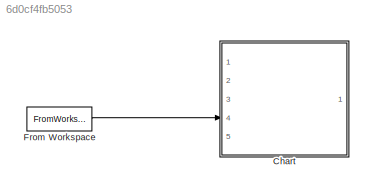
MODEL slx_6d0cf4fb5053
KIND model
CONFIG AbsTol = auto
CONFIG EnableMultiTasking = off
CONFIG FixedStep = auto
CONFIG MaxStep = auto
CONFIG MinStep = auto
CONFIG RelTol = 1e-3
CONFIG SampleTimeConstraint = Unconstrained
CONFIG Solver = VariableStepAuto
CONFIG SolverName = VariableStepAuto
CONFIG StartTime = 0.0
CONFIG StopTime = 10.0
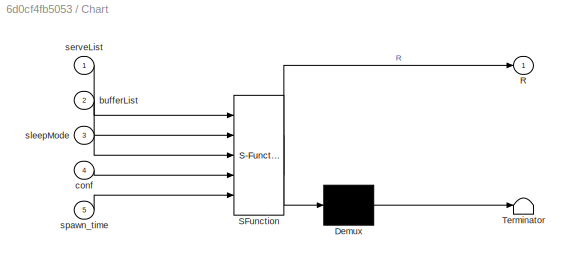
BLOCK [SubSystem] Chart
  ErrorFcn = Stateflow.Translate.translate
  PermitHierarchicalResolution = ExplicitOnly
  Ports = [5, 1]
  RequestExecContextInheritance = off
  SFBlockType = Chart
  TreatAsAtomicUnit = on
BLOCK [Demux] Chart/ Demux 
  Outputs = 1
  Ports = [1, 1]
BLOCK [S-Function] Chart/ SFunction 
  EnableBusSupport = on
  FunctionName = sf_sfun
  PortCounts = [5 2]
  Ports = [5, 2]
  SFcnIsStateOwnerBlock = off
  SFunctionDeploymentMode = off
  Tag = Stateflow S-Function 3
BLOCK [Terminator] Chart/ Terminator 
BLOCK [Outport] Chart/R
BLOCK [Inport] Chart/bufferList
  Port = 2
BLOCK [Inport] Chart/conf
  Port = 4
BLOCK [Inport] Chart/serveList
BLOCK [Inport] Chart/sleepMode
  Port = 3
BLOCK [Inport] Chart/spawn_time
  Port = 5
BLOCK [FromWorkspace] From Workspace
  VariableName = conf
LINE From Workspace:1 -> Chart:4
CHART Chart states=9 transitions=16
  STATE_LABEL 'active\nentry:\ndelay=sum(t-spawn_time(bufferList));\nR=conf.eta*energy_con+(1-conf.eta)*delay;%Cost Function, to be minimized\nserveList=bufferList;\nduring:\nfor usr=serveList\n    % To be continued......\n    % Serve the users\nend\n'
  STATE_LABEL 'SM3_deact\nentry:\nsleepMode=4;\nn=ones(3);%Action, will be implemented with eps-greedy.\nenergy_con=0;%Energy consumption\ndelay=0;% Delay\nt0=t;%Current time'
  STATE_LABEL 'Idle\nentry:\nt0=t;\nexit:\nenergy_con=energy_con+(t-t0)*conf.pow_cons(1)'
  STATE_LABEL 'SM3_act\nexit:\nenergy_con=energy_con+(t-t0)*conf.pow_cons(4);'
  STATE_LABEL 'SM3\n'
  STATE_LABEL 'SM2\nentry:\nsleepMode=3;\nt0=t;\n'
  STATE_LABEL 'SM1_act\nexit:\nenergy_con=energy_con+(t-t0)*conf.pow_cons(2);'
  STATE_LABEL 'SM2_act\nexit:\nenergy_con=energy_con+(t-t0)*conf.pow_cons(3);\n'
  STATE_LABEL 'SM1\nentry:\nsleepMode=2;\nt0=t;'
CHART  states=0 transitions=0
